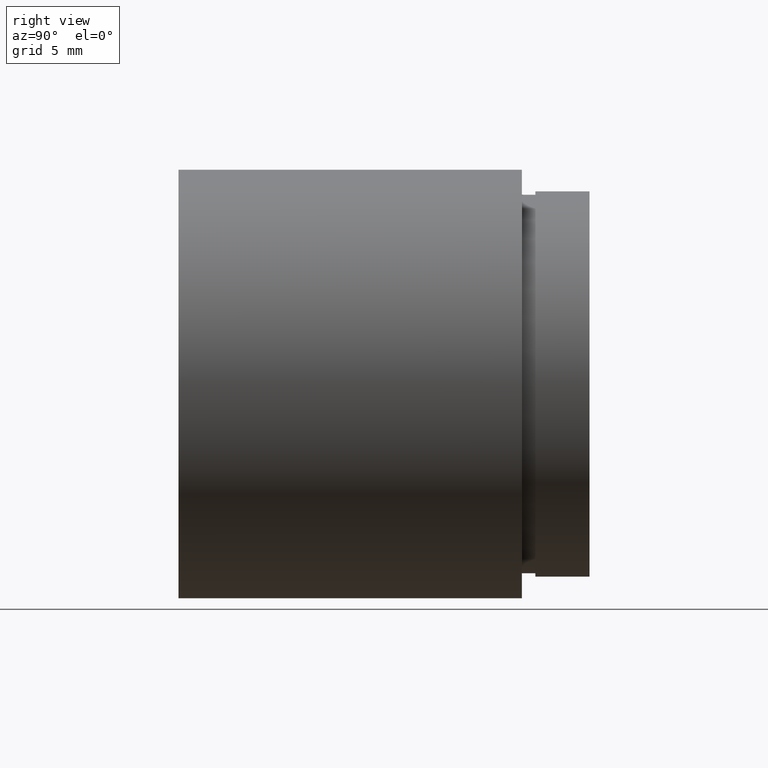
[diagram: clean part render]
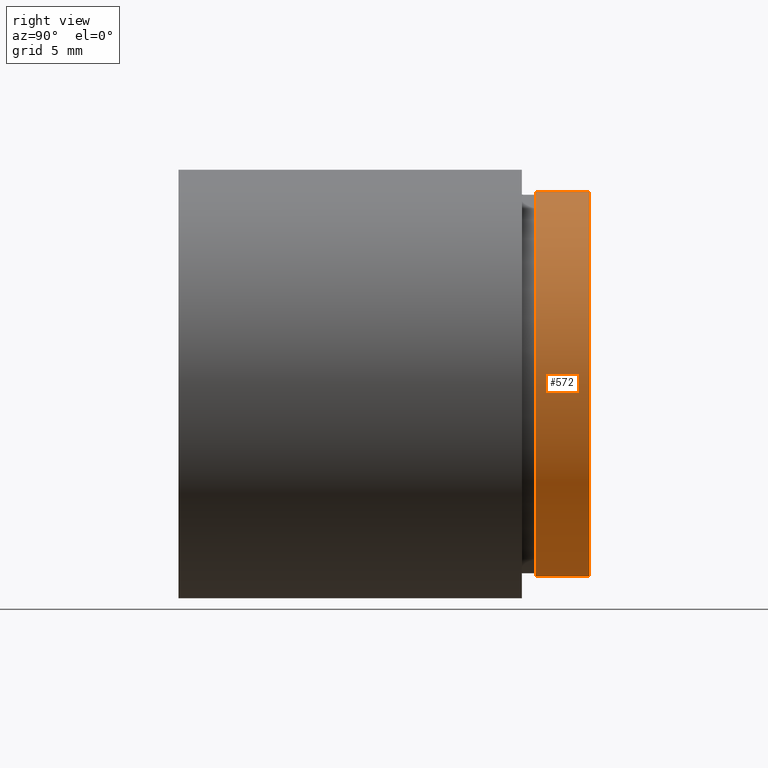
[diagram: same view with one face highlighted and labeled with its STEP entity id]
A machine part, right view. The second image highlights one B-rep face of the part: STEP entity #572.
In plain terms, the highlighted cylindrical surface (partial cylindrical patch) has radius 14.25 mm, axis along (-0, 1, -0).
Its self-contained STEP definition (entity closure, byte-faithful):
#6 = CARTESIAN_POINT ( 'NONE',  ( 1.745121688784980200E-015, 26.39999999999997700, -14.25000000000001600 ) ) ;
#12 = CARTESIAN_POINT ( 'NONE',  ( 0.0000000000000000000, 26.39999999999997700, 14.25000000000001600 ) ) ;
#15 = CARTESIAN_POINT ( 'NONE',  ( 0.0000000000000000000, 161.3761669434274500, 0.0000000000000000000 ) ) ;
#17 = DIRECTION ( 'NONE',  ( 0.0000000000000000000, 0.0000000000000000000, 1.000000000000000000 ) ) ;
#23 = CARTESIAN_POINT ( 'NONE',  ( 0.0000000000000000000, 30.39999999999998400, 0.0000000000000000000 ) ) ;
#37 = VECTOR ( 'NONE', #602, 1000.000000000000000 ) ;
#82 = CARTESIAN_POINT ( 'NONE',  ( 1.745121688784980200E-015, 161.3761669434274500, -14.25000000000001600 ) ) ;
#100 = LINE ( 'NONE', #82, #193 ) ;
#127 = EDGE_CURVE ( 'NONE', #503, #289, #100, .T. ) ;
#132 = ORIENTED_EDGE ( 'NONE', *, *, #560, .F. ) ;
#161 = CARTESIAN_POINT ( 'NONE',  ( 0.0000000000000000000, 161.3761669434274500, 14.25000000000001600 ) ) ;
#168 = ORIENTED_EDGE ( 'NONE', *, *, #590, .T. ) ;
#193 = VECTOR ( 'NONE', #523, 1000.000000000000000 ) ;
#200 = EDGE_LOOP ( 'NONE', ( #168, #314, #132, #586 ) ) ;
#208 = CARTESIAN_POINT ( 'NONE',  ( 0.0000000000000000000, 26.39999999999997700, 0.0000000000000000000 ) ) ;
#209 = DIRECTION ( 'NONE',  ( 0.0000000000000000000, 0.0000000000000000000, 1.000000000000000000 ) ) ;
#289 = VERTEX_POINT ( 'NONE', #585 ) ;
#290 = LINE ( 'NONE', #161, #37 ) ;
#302 = DIRECTION ( 'NONE',  ( -0.0000000000000000000, 1.000000000000000000, -0.0000000000000000000 ) ) ;
#314 = ORIENTED_EDGE ( 'NONE', *, *, #127, .T. ) ;
#345 = VERTEX_POINT ( 'NONE', #481 ) ;
#352 = AXIS2_PLACEMENT_3D ( 'NONE', #15, #406, #209 ) ;
#363 = FACE_OUTER_BOUND ( 'NONE', #200, .T. ) ;
#406 = DIRECTION ( 'NONE',  ( -0.0000000000000000000, 1.000000000000000000, -0.0000000000000000000 ) ) ;
#444 = DIRECTION ( 'NONE',  ( 0.0000000000000000000, 0.0000000000000000000, 1.000000000000000000 ) ) ;
#445 = CIRCLE ( 'NONE', #474, 14.25000000000001600 ) ;
#448 = CIRCLE ( 'NONE', #564, 14.25000000000001600 ) ;
#474 = AXIS2_PLACEMENT_3D ( 'NONE', #208, #302, #17 ) ;
#481 = CARTESIAN_POINT ( 'NONE',  ( 0.0000000000000000000, 30.39999999999998400, 14.25000000000001600 ) ) ;
#503 = VERTEX_POINT ( 'NONE', #6 ) ;
#508 = VERTEX_POINT ( 'NONE', #12 ) ;
#523 = DIRECTION ( 'NONE',  ( -0.0000000000000000000, 1.000000000000000000, -0.0000000000000000000 ) ) ;
#544 = CYLINDRICAL_SURFACE ( 'NONE', #352, 14.25000000000001600 ) ;
#559 = DIRECTION ( 'NONE',  ( -0.0000000000000000000, 1.000000000000000000, -0.0000000000000000000 ) ) ;
#560 = EDGE_CURVE ( 'NONE', #345, #289, #448, .T. ) ;
#564 = AXIS2_PLACEMENT_3D ( 'NONE', #23, #559, #444 ) ;
#572 = ADVANCED_FACE ( 'NONE', ( #363 ), #544, .T. ) ;
#585 = CARTESIAN_POINT ( 'NONE',  ( 1.745121688784980200E-015, 30.39999999999998400, -14.25000000000001600 ) ) ;
#586 = ORIENTED_EDGE ( 'NONE', *, *, #611, .F. ) ;
#590 = EDGE_CURVE ( 'NONE', #508, #503, #445, .T. ) ;
#602 = DIRECTION ( 'NONE',  ( -0.0000000000000000000, 1.000000000000000000, -0.0000000000000000000 ) ) ;
#611 = EDGE_CURVE ( 'NONE', #508, #345, #290, .T. ) ;